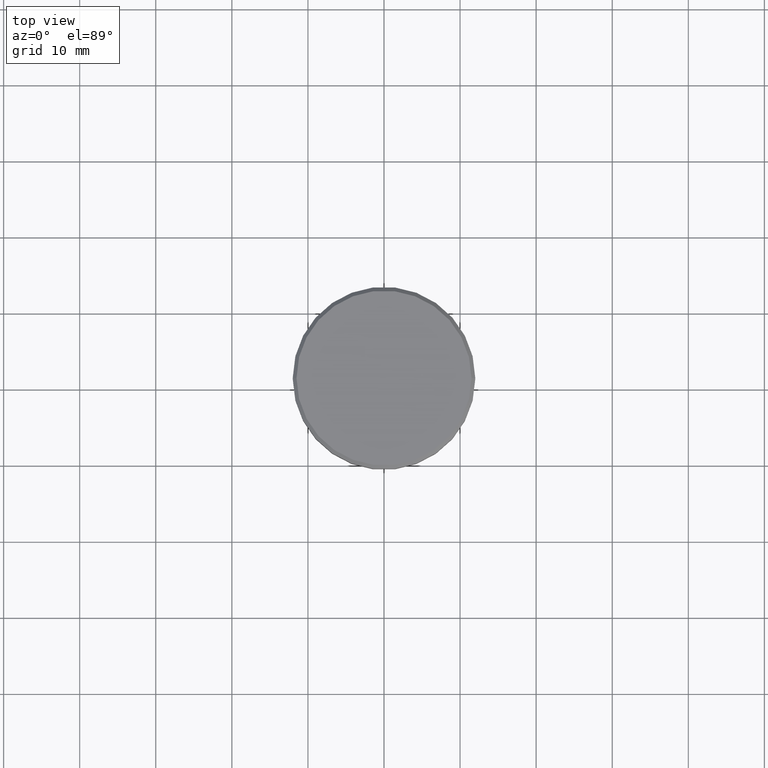
[diagram: clean part render]
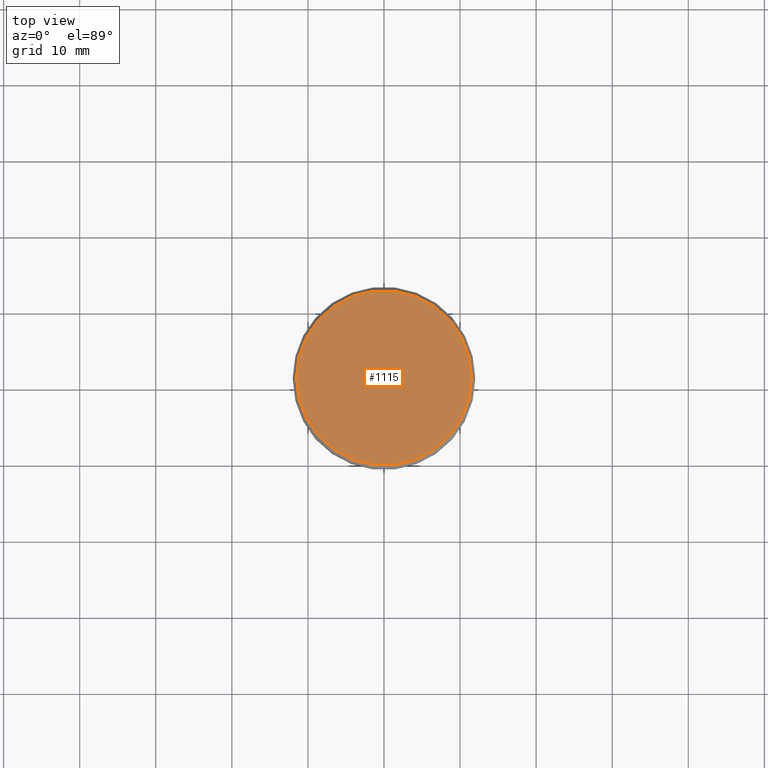
[diagram: same view with one face highlighted and labeled with its STEP entity id]
A machine part, top view. The second image highlights one B-rep face of the part: STEP entity #1115.
In plain terms, the highlighted planar face has unit normal (0, -0, 1).
Its self-contained STEP definition (entity closure, byte-faithful):
#53 = AXIS2_PLACEMENT_3D ( 'NONE', #404, #941, #298 ) ;
#57 = VERTEX_POINT ( 'NONE', #574 ) ;
#64 = CARTESIAN_POINT ( 'NONE',  ( 0.000000000000000000, 0.000000000000000000, 0.000000000000000000 ) ) ;
#65 = DIRECTION ( 'NONE',  ( 1.000000000000000000, 0.000000000000000000, 0.000000000000000000 ) ) ;
#298 = DIRECTION ( 'NONE',  ( 1.000000000000000000, 0.000000000000000000, 0.000000000000000000 ) ) ;
#310 = EDGE_CURVE ( 'NONE', #57, #758, #338, .T. ) ;
#338 = CIRCLE ( 'NONE', #797, 11.49999999999999467 ) ;
#404 = CARTESIAN_POINT ( 'NONE',  ( 0.000000000000000000, 0.000000000000000000, 0.000000000000000000 ) ) ;
#413 = PLANE ( 'NONE',  #53 ) ;
#517 = ORIENTED_EDGE ( 'NONE', *, *, #852, .T. ) ;
#574 = CARTESIAN_POINT ( 'NONE',  ( -11.49999999999999467, 0.000000000000000000, 0.000000000000000000 ) ) ;
#593 = FACE_OUTER_BOUND ( 'NONE', #648, .T. ) ;
#648 = EDGE_LOOP ( 'NONE', ( #881, #517 ) ) ;
#758 = VERTEX_POINT ( 'NONE', #978 ) ;
#797 = AXIS2_PLACEMENT_3D ( 'NONE', #1163, #889, #65 ) ;
#798 = CIRCLE ( 'NONE', #955, 11.49999999999999467 ) ;
#806 = DIRECTION ( 'NONE',  ( -0.000000000000000000, -0.000000000000000000, 1.000000000000000000 ) ) ;
#852 = EDGE_CURVE ( 'NONE', #758, #57, #798, .T. ) ;
#881 = ORIENTED_EDGE ( 'NONE', *, *, #310, .T. ) ;
#889 = DIRECTION ( 'NONE',  ( -0.000000000000000000, -0.000000000000000000, 1.000000000000000000 ) ) ;
#941 = DIRECTION ( 'NONE',  ( 0.000000000000000000, -0.000000000000000000, 1.000000000000000000 ) ) ;
#955 = AXIS2_PLACEMENT_3D ( 'NONE', #64, #806, #1161 ) ;
#978 = CARTESIAN_POINT ( 'NONE',  ( 11.49999999999999467, 1.438959988998139766E-15, 0.000000000000000000 ) ) ;
#1115 = ADVANCED_FACE ( 'NONE', ( #593 ), #413, .T. ) ;
#1161 = DIRECTION ( 'NONE',  ( 1.000000000000000000, 0.000000000000000000, 0.000000000000000000 ) ) ;
#1163 = CARTESIAN_POINT ( 'NONE',  ( 0.000000000000000000, 0.000000000000000000, 0.000000000000000000 ) ) ;